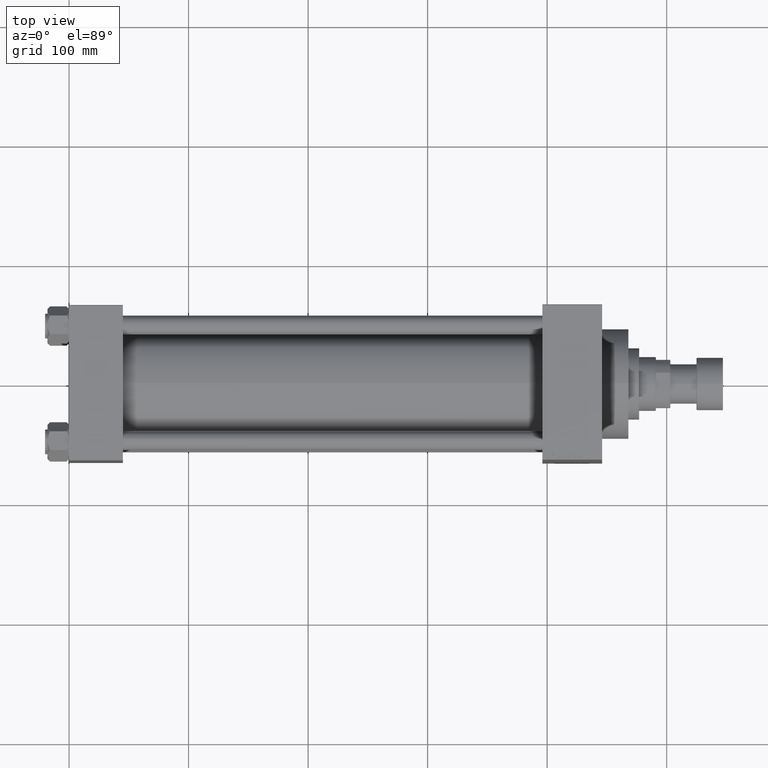
[diagram: clean part render]
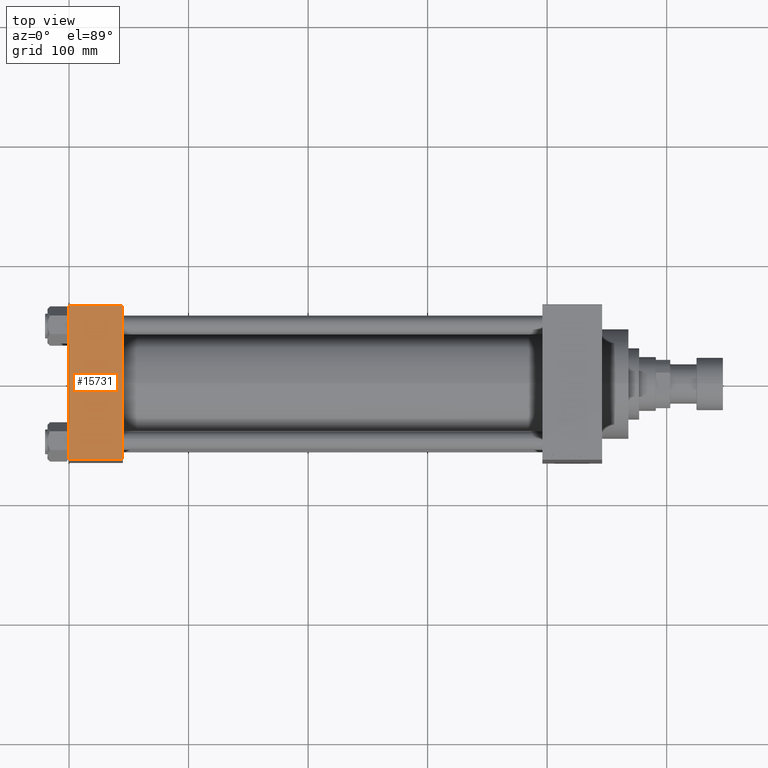
[diagram: same view with one face highlighted and labeled with its STEP entity id]
A machine part, top view. The second image highlights one B-rep face of the part: STEP entity #15731.
In plain terms, the highlighted planar face has unit normal (0, 0, -1).
Its self-contained STEP definition (entity closure, byte-faithful):
#51 = VERTEX_POINT ( 'NONE', #5748 ) ;
#898 = VECTOR ( 'NONE', #2579, 1000.000000000000000 ) ;
#1424 = PLANE ( 'NONE',  #28606 ) ;
#2579 = DIRECTION ( 'NONE',  ( 0.000000000000000000, -1.000000000000000000, -1.067522139062650425E-16 ) ) ;
#3562 = EDGE_CURVE ( 'NONE', #51, #14796, #36232, .T. ) ;
#5092 = FACE_OUTER_BOUND ( 'NONE', #48285, .T. ) ;
#5479 = ORIENTED_EDGE ( 'NONE', *, *, #3562, .T. ) ;
#5748 = CARTESIAN_POINT ( 'NONE',  ( 45.00000000000000000, 64.49999999999997158, 65.00000000000001421 ) ) ;
#5809 = CARTESIAN_POINT ( 'NONE',  ( 45.00000000000000000, 65.00000000000000000, 65.00000000000001421 ) ) ;
#5938 = VERTEX_POINT ( 'NONE', #29425 ) ;
#6173 = LINE ( 'NONE', #32316, #23462 ) ;
#9494 = DIRECTION ( 'NONE',  ( 0.000000000000000000, 1.067522139062650548E-16, -1.000000000000000000 ) ) ;
#10100 = CARTESIAN_POINT ( 'NONE',  ( 0.000000000000000000, 64.49999999999997158, 65.00000000000001421 ) ) ;
#14505 = ORIENTED_EDGE ( 'NONE', *, *, #34829, .T. ) ;
#14796 = VERTEX_POINT ( 'NONE', #36366 ) ;
#14932 = VECTOR ( 'NONE', #18616, 1000.000000000000000 ) ;
#15731 = ADVANCED_FACE ( 'NONE', ( #5092 ), #1424, .F. ) ;
#18616 = DIRECTION ( 'NONE',  ( 1.000000000000000000, 0.000000000000000000, 0.000000000000000000 ) ) ;
#18859 = LINE ( 'NONE', #26412, #14932 ) ;
#18962 = VECTOR ( 'NONE', #40135, 1000.000000000000000 ) ;
#21627 = LINE ( 'NONE', #36532, #898 ) ;
#23462 = VECTOR ( 'NONE', #24506, 1000.000000000000000 ) ;
#24379 = DIRECTION ( 'NONE',  ( 0.000000000000000000, 1.000000000000000000, 1.067522139062650548E-16 ) ) ;
#24506 = DIRECTION ( 'NONE',  ( 0.000000000000000000, -1.000000000000000000, -1.067522139062650425E-16 ) ) ;
#26412 = CARTESIAN_POINT ( 'NONE',  ( 45.00000000000000000, -64.49999999999997158, 65.00000000000000000 ) ) ;
#28606 = AXIS2_PLACEMENT_3D ( 'NONE', #5809, #9494, #24379 ) ;
#29425 = CARTESIAN_POINT ( 'NONE',  ( 0.000000000000000000, -64.49999999999997158, 65.00000000000000000 ) ) ;
#32316 = CARTESIAN_POINT ( 'NONE',  ( 45.00000000000000000, 65.00000000000000000, 65.00000000000001421 ) ) ;
#33180 = VERTEX_POINT ( 'NONE', #35054 ) ;
#34766 = EDGE_CURVE ( 'NONE', #51, #33180, #6173, .T. ) ;
#34829 = EDGE_CURVE ( 'NONE', #5938, #33180, #18859, .T. ) ;
#35054 = CARTESIAN_POINT ( 'NONE',  ( 45.00000000000000000, -64.49999999999997158, 65.00000000000000000 ) ) ;
#36232 = LINE ( 'NONE', #10100, #18962 ) ;
#36273 = EDGE_CURVE ( 'NONE', #14796, #5938, #21627, .T. ) ;
#36366 = CARTESIAN_POINT ( 'NONE',  ( 0.000000000000000000, 64.49999999999997158, 65.00000000000001421 ) ) ;
#36532 = CARTESIAN_POINT ( 'NONE',  ( 0.000000000000000000, 65.00000000000000000, 65.00000000000001421 ) ) ;
#40135 = DIRECTION ( 'NONE',  ( -1.000000000000000000, 0.000000000000000000, 0.000000000000000000 ) ) ;
#45747 = ORIENTED_EDGE ( 'NONE', *, *, #34766, .F. ) ;
#46226 = ORIENTED_EDGE ( 'NONE', *, *, #36273, .T. ) ;
#48285 = EDGE_LOOP ( 'NONE', ( #46226, #14505, #45747, #5479 ) ) ;